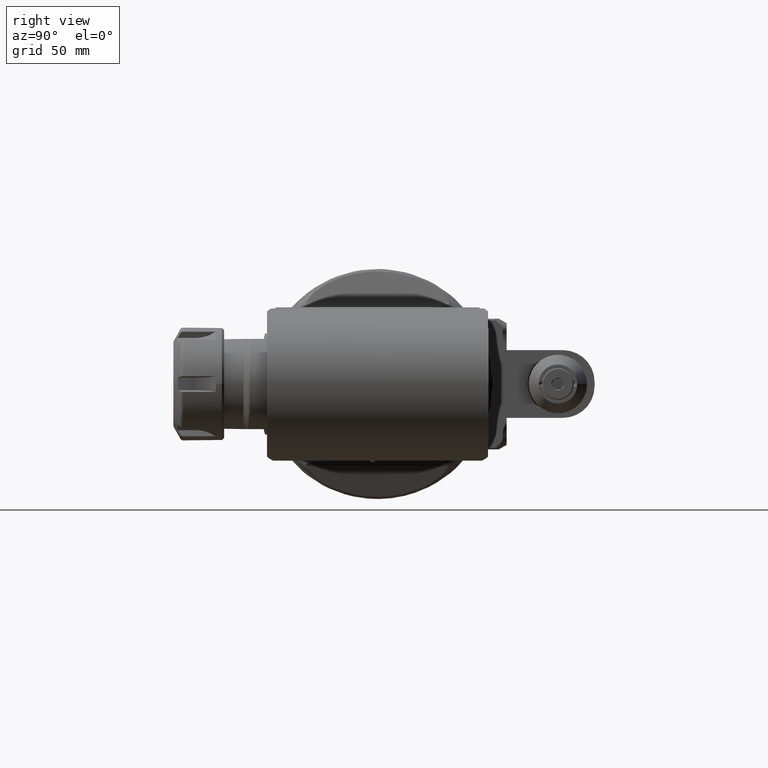
[diagram: clean part render]
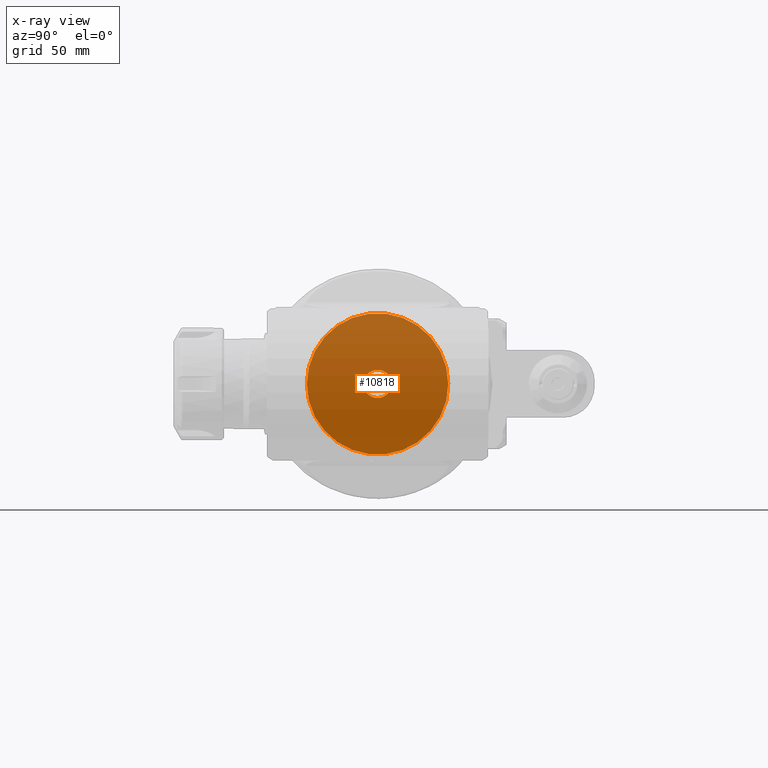
[diagram: x-ray — body ghosted, one internal face saturated and labeled with its STEP entity id]
A machine part, right view, then the same camera in x-ray: the body is ghosted and one INTERNAL B-rep face — a face not visible from any outside direction — is saturated and labeled: STEP entity #10818.
In plain terms, the highlighted planar face has unit normal (1, 0, 0).
Its self-contained STEP definition (entity closure, byte-faithful):
#754=FACE_BOUND('',#3562,.T.);
#2917=FACE_OUTER_BOUND('',#3561,.T.);
#3561=EDGE_LOOP('',(#9740));
#3562=EDGE_LOOP('',(#9741));
#3994=CIRCLE('',#11788,31.35);
#4003=CIRCLE('',#11813,6.25);
#5080=VERTEX_POINT('',#64661);
#5103=VERTEX_POINT('',#64758);
#6633=EDGE_CURVE('',#5080,#5080,#3994,.T.);
#6670=EDGE_CURVE('',#5103,#5103,#4003,.T.);
#9740=ORIENTED_EDGE('',*,*,#6633,.T.);
#9741=ORIENTED_EDGE('',*,*,#6670,.T.);
#10298=PLANE('',#11812);
#10818=ADVANCED_FACE('',(#2917,#754),#10298,.T.);
#11788=AXIS2_PLACEMENT_3D('',#64663,#14268,#14269);
#11812=AXIS2_PLACEMENT_3D('',#64757,#14334,#14335);
#11813=AXIS2_PLACEMENT_3D('',#64759,#14336,#14337);
#14268=DIRECTION('center_axis',(1.,0.,0.));
#14269=DIRECTION('ref_axis',(0.,1.,0.));
#14334=DIRECTION('center_axis',(1.,0.,0.));
#14335=DIRECTION('ref_axis',(0.,1.,0.));
#14336=DIRECTION('center_axis',(-1.,3.549938121233E-13,7.10420275124E-13));
#14337=DIRECTION('ref_axis',(3.549938121233E-13,1.,-2.06645935618054E-28));
#64661=CARTESIAN_POINT('',(-32.,31.35,0.));
#64663=CARTESIAN_POINT('Origin',(-32.,0.,0.));
#64757=CARTESIAN_POINT('Origin',(-32.,0.,0.));
#64758=CARTESIAN_POINT('',(-31.9999999553278,6.25000000002472,-2.05801169645598E-11));
#64759=CARTESIAN_POINT('Origin',(-31.99999995533,2.471566740325E-11,-2.057935156031E-11));